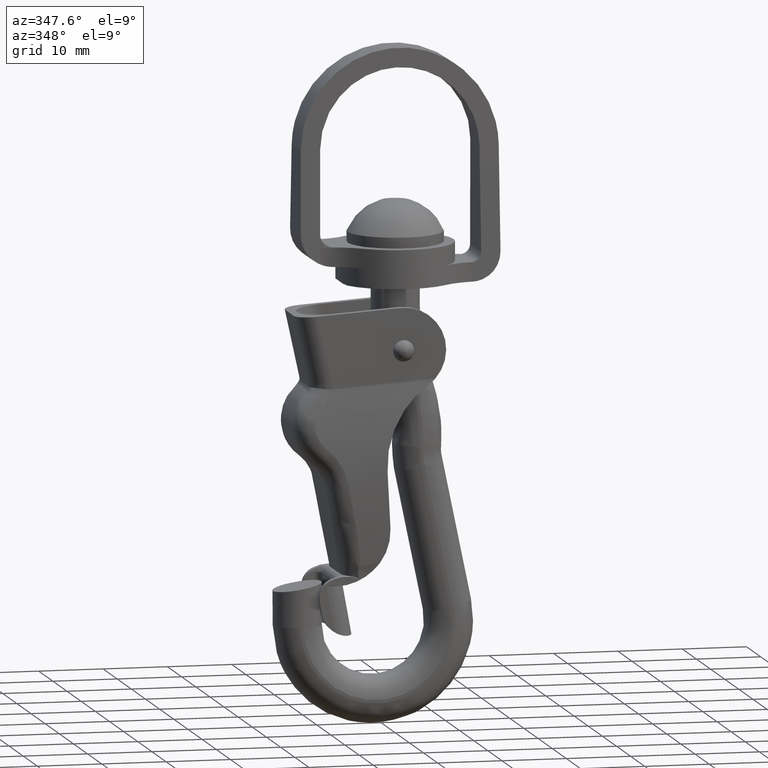
[diagram: clean part render]
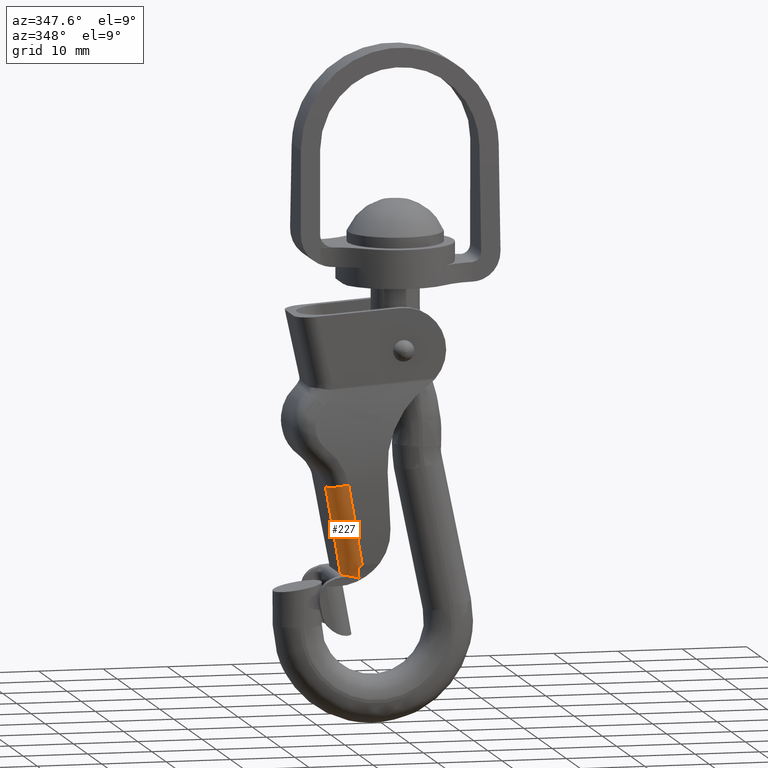
[diagram: same view with one face highlighted and labeled with its STEP entity id]
A machine part, auxiliary view. The second image highlights one B-rep face of the part: STEP entity #227.
In plain terms, the highlighted face is a freeform B-spline surface patch.
Its self-contained STEP definition (entity closure, byte-faithful):
#227=ADVANCED_FACE('',(#1098),#1097,.T.);
#1097=( BOUNDED_SURFACE() B_SPLINE_SURFACE( 3,2,((#2960,#2961,#2962),(#2963,#2964,#2965),(#2966,#2967,#2968),(#2969,#2970,#2971)), .UNSPECIFIED.,.F.,.F.,.F.) B_SPLINE_SURFACE_WITH_KNOTS((4,4),(3,3),(4.68989042212E+00,4.83951356167E+00),(0.00000000000E+00,1.00000000000E+00), .UNSPECIFIED. ) GEOMETRIC_REPRESENTATION_ITEM() RATIONAL_B_SPLINE_SURFACE(((1.00000000000E+00,7.06227887965E-01,1.00000000000E+00),(1.00000000000E+00,7.08177100088E-01,1.00000000000E+00),(1.00000000000E+00,7.10121441904E-01,1.00000000000E+00),(1.00000000000E+00,7.12039598613E-01,1.00000000000E+00))) REPRESENTATION_ITEM('') SURFACE() );
#1098=FACE_OUTER_BOUND('',#2972,.T.);
#2960=CARTESIAN_POINT('',(-1.32399392897E+01,-4.45798159360E+00,-1.98373717898E+01));
#2961=CARTESIAN_POINT('',(-1.32473651750E+01,-7.46469204054E+00,-1.97705388217E+01));
#2962=CARTESIAN_POINT('',(-1.02582880857E+01,-7.45722234794E+00,-1.94385872308E+01));
#2963=CARTESIAN_POINT('',(-1.27117372599E+01,-4.56495370073E+00,-2.45911900582E+01));
#2964=CARTESIAN_POINT('',(-1.27041620984E+01,-7.55818325499E+00,-2.46593665112E+01));
#2965=CARTESIAN_POINT('',(-9.73008605083E+00,-7.56756052661E+00,-2.43419930199E+01));
#2966=CARTESIAN_POINT('',(-1.21826720428E+01,-4.31563325872E+00,-2.93527770119E+01));
#2967=CARTESIAN_POINT('',(-1.21588040269E+01,-7.28657777015E+00,-2.95675891549E+01));
#2968=CARTESIAN_POINT('',(-9.20102084485E+00,-7.31039477301E+00,-2.92534118005E+01));
#2969=CARTESIAN_POINT('',(-1.16585997006E+01,-3.71277995883E+00,-3.40694280914E+01));
#2970=CARTESIAN_POINT('',(-1.16174306568E+01,-6.64748346032E+00,-3.44399494854E+01));
#2971=CARTESIAN_POINT('',(-8.67694849659E+00,-6.68857159836E+00,-3.41184808782E+01));
#2972=EDGE_LOOP('',(#4336,#4337,#4338,#4339,#4340));
#4336=ORIENTED_EDGE('',*,*,#5033,.F.);
#4337=ORIENTED_EDGE('',*,*,#5034,.F.);
#4338=ORIENTED_EDGE('',*,*,#5035,.F.);
#4339=ORIENTED_EDGE('',*,*,#5036,.F.);
#4340=ORIENTED_EDGE('',*,*,#5037,.F.);
#5033=EDGE_CURVE('',#6851,#6852,#6853,.T.);
#5034=EDGE_CURVE('',#6859,#6851,#6860,.T.);
#5035=EDGE_CURVE('',#6866,#6859,#6867,.T.);
#5036=EDGE_CURVE('',#6873,#6866,#6874,.T.);
#5037=EDGE_CURVE('',#6852,#6873,#6880,.T.);
#6851=VERTEX_POINT('',#9546);
#6852=VERTEX_POINT('',#9547);
#6853=(BOUNDED_CURVE() B_SPLINE_CURVE(3,(#9548,#9549,#9550,#9551,#9552,#9553,#9554,#9555,#9556,#9557,#9558,#9559),.UNSPECIFIED.,.F.,.F.) B_SPLINE_CURVE_WITH_KNOTS((4,2,2,2,2,4),(0.00000000000E+00,3.06243207834E-04,6.12486415668E-04,1.22497283134E-03,1.83745924701E-03,2.44994566267E-03),.UNSPECIFIED.) CURVE() GEOMETRIC_REPRESENTATION_ITEM() RATIONAL_B_SPLINE_CURVE((1.00000000000E+00,1.00000000000E+00,1.00000000000E+00,1.00000000000E+00,1.00000000000E+00,1.00000000000E+00,1.00000000000E+00,1.00000000000E+00,1.00000000000E+00,1.00000000000E+00,1.00000000000E+00,1.00000000000E+00)) REPRESENTATION_ITEM('') );
#6859=VERTEX_POINT('',#9560);
#6860=(BOUNDED_CURVE() B_SPLINE_CURVE(2,(#9561,#9562,#9563),.UNSPECIFIED.,.F.,.F.) B_SPLINE_CURVE_WITH_KNOTS((3,3),(-1.59329488506E+00,-1.46510165804E+00),.UNSPECIFIED.) CURVE() GEOMETRIC_REPRESENTATION_ITEM() RATIONAL_B_SPLINE_CURVE((1.00000000000E+00,9.97946515253E-01,1.00000000000E+00)) REPRESENTATION_ITEM('') );
#6866=VERTEX_POINT('',#9564);
#6867=CIRCLE('',#9568,3.00000000000E+00);
#6873=VERTEX_POINT('',#9569);
#6874=(BOUNDED_CURVE() B_SPLINE_CURVE(2,(#9570,#9571,#9572),.UNSPECIFIED.,.F.,.F.) B_SPLINE_CURVE_WITH_KNOTS((3,3),(1.44879891986E+00,1.59329488506E+00),.UNSPECIFIED.) CURVE() GEOMETRIC_REPRESENTATION_ITEM() RATIONAL_B_SPLINE_CURVE((1.00000000000E+00,9.97391249558E-01,1.00000000000E+00)) REPRESENTATION_ITEM('') );
#6880=(BOUNDED_CURVE() B_SPLINE_CURVE(3,(#9573,#9574,#9575,#9576,#9577,#9578,#9579,#9580,#9581,#9582,#9583,#9584,#9585,#9586,#9587,#9588),.UNSPECIFIED.,.F.,.F.) B_SPLINE_CURVE_WITH_KNOTS((4,2,2,2,2,2,2,4),(0.00000000000E+00,5.06626534442E-04,1.01325306888E-03,1.51987960333E-03,2.02650613777E-03,2.53313267221E-03,3.03975920665E-03,4.05301227554E-03),.UNSPECIFIED.) CURVE() GEOMETRIC_REPRESENTATION_ITEM() RATIONAL_B_SPLINE_CURVE((1.00000000000E+00,1.00000000000E+00,1.00000000000E+00,1.00000000000E+00,1.00000000000E+00,1.00000000000E+00,1.00000000000E+00,1.00000000000E+00,1.00000000000E+00,1.00000000000E+00,1.00000000000E+00,1.00000000000E+00,1.00000000000E+00,1.00000000000E+00,1.00000000000E+00,1.00000000000E+00)) REPRESENTATION_ITEM('') );
#9546=CARTESIAN_POINT('',(-8.90241856847E+00,-6.93333333333E+00,-3.20253968254E+01));
#9547=CARTESIAN_POINT('',(-9.36598980416E+00,-6.61188989254E+00,-3.40958079940E+01));
#9548=CARTESIAN_POINT('',(-8.90241856847E+00,-6.93333333333E+00,-3.20253968254E+01));
#9549=CARTESIAN_POINT('',(-9.00628608452E+00,-6.93333333333E+00,-3.20253968254E+01));
#9550=CARTESIAN_POINT('',(-9.10653807703E+00,-6.92389058732E+00,-3.20597090156E+01));
#9551=CARTESIAN_POINT('',(-9.27349009712E+00,-6.89367524427E+00,-3.21756208919E+01));
#9552=CARTESIAN_POINT('',(-9.33981492455E+00,-6.87382954651E+00,-3.22542721141E+01));
#9553=CARTESIAN_POINT('',(-9.49591450820E+00,-6.81297007492E+00,-3.25133871794E+01));
#9554=CARTESIAN_POINT('',(-9.54515321465E+00,-6.77189539760E+00,-3.27123650649E+01));
#9555=CARTESIAN_POINT('',(-9.58649598929E+00,-6.70400371386E+00,-3.31100572725E+01));
#9556=CARTESIAN_POINT('',(-9.57724537890E+00,-6.67585364391E+00,-3.33147446855E+01));
#9557=CARTESIAN_POINT('',(-9.51046455766E+00,-6.63398615134E+00,-3.37131925901E+01));
#9558=CARTESIAN_POINT('',(-9.45282808280E+00,-6.61986762452E+00,-3.39101741552E+01));
#9559=CARTESIAN_POINT('',(-9.36598980416E+00,-6.61188989254E+00,-3.40958079940E+01));
#9560=CARTESIAN_POINT('',(-1.02582880857E+01,-7.45722234794E+00,-1.94385872308E+01));
#9561=CARTESIAN_POINT('',(-1.02582880857E+01,-7.45722234794E+00,-1.94385872308E+01));
#9562=CARTESIAN_POINT('',(-9.57854222913E+00,-7.59921710528E+00,-2.57488048147E+01));
#9563=CARTESIAN_POINT('',(-8.90241856847E+00,-6.93333333333E+00,-3.20253968254E+01));
#9564=CARTESIAN_POINT('',(-1.32399392897E+01,-4.45798159360E+00,-1.98373717898E+01));
#9565=CARTESIAN_POINT('',(-1.02582880857E+01,-4.45798159360E+00,-1.95060772115E+01));
#9566=DIRECTION('',(-1.10403918560E-01,2.23591336998E-02,9.93635267041E-01));
#9567=DIRECTION('',(-9.93883734674E-01,1.77591275609E-15,-1.10431526075E-01));
#9568=AXIS2_PLACEMENT_3D('',#9565,#9566,#9567);
#9569=CARTESIAN_POINT('',(-1.17124918887E+01,-3.77351015019E+00,-3.35843983982E+01));
#9570=CARTESIAN_POINT('',(-1.17124918887E+01,-3.77351015019E+00,-3.35843983982E+01));
#9571=CARTESIAN_POINT('',(-1.24734634835E+01,-4.61320919106E+00,-2.67356540455E+01));
#9572=CARTESIAN_POINT('',(-1.32399392897E+01,-4.45798159360E+00,-1.98373717898E+01));
#9573=CARTESIAN_POINT('',(-9.36598980416E+00,-6.61188989254E+00,-3.40958079940E+01));
#9574=CARTESIAN_POINT('',(-9.52009590742E+00,-6.58633004794E+00,-3.40258774590E+01));
#9575=CARTESIAN_POINT('',(-9.67322294803E+00,-6.54796110422E+00,-3.39646249391E+01));
#9576=CARTESIAN_POINT('',(-9.97604785342E+00,-6.44314051302E+00,-3.38576516492E+01));
#9577=CARTESIAN_POINT('',(-1.01273142113E+01,-6.37577545386E+00,-3.38115552669E+01));
#9578=CARTESIAN_POINT('',(-1.04163357116E+01,-6.21351451167E+00,-3.37353555918E+01));
#9579=CARTESIAN_POINT('',(-1.05532743538E+01,-6.11950007056E+00,-3.37052774936E+01));
#9580=CARTESIAN_POINT('',(-1.08109733019E+01,-5.90545306881E+00,-3.36572440635E+01));
#9581=CARTESIAN_POINT('',(-1.09324776930E+01,-5.78418302694E+00,-3.36392678349E+01));
#9582=CARTESIAN_POINT('',(-1.11488822687E+01,-5.52472972436E+00,-3.36129816411E+01));
#9583=CARTESIAN_POINT('',(-1.12450219350E+01,-5.38583780869E+00,-3.36043957535E+01));
#9584=CARTESIAN_POINT('',(-1.14131004580E+01,-5.08996101571E+00,-3.35925694676E+01));
#9585=CARTESIAN_POINT('',(-1.14841316534E+01,-4.93402205404E+00,-3.35894042685E+01));
#9586=CARTESIAN_POINT('',(-1.16538937335E+01,-4.45621343500E+00,-3.35837647451E+01));
#9587=CARTESIAN_POINT('',(-1.17124918887E+01,-4.11567952704E+00,-3.35843983982E+01));
#9588=CARTESIAN_POINT('',(-1.17124918887E+01,-3.77351015019E+00,-3.35843983982E+01));